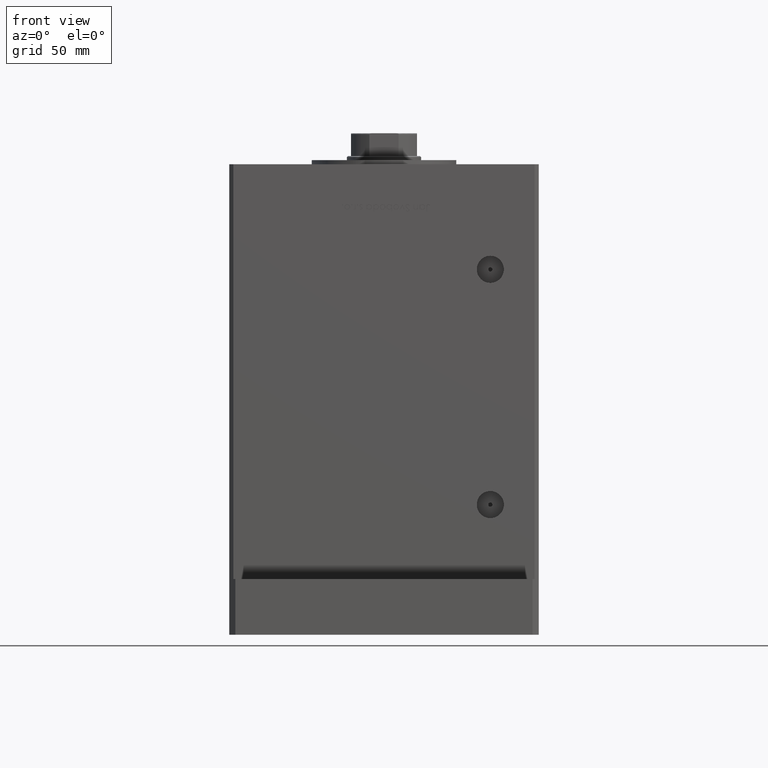
[diagram: clean part render]
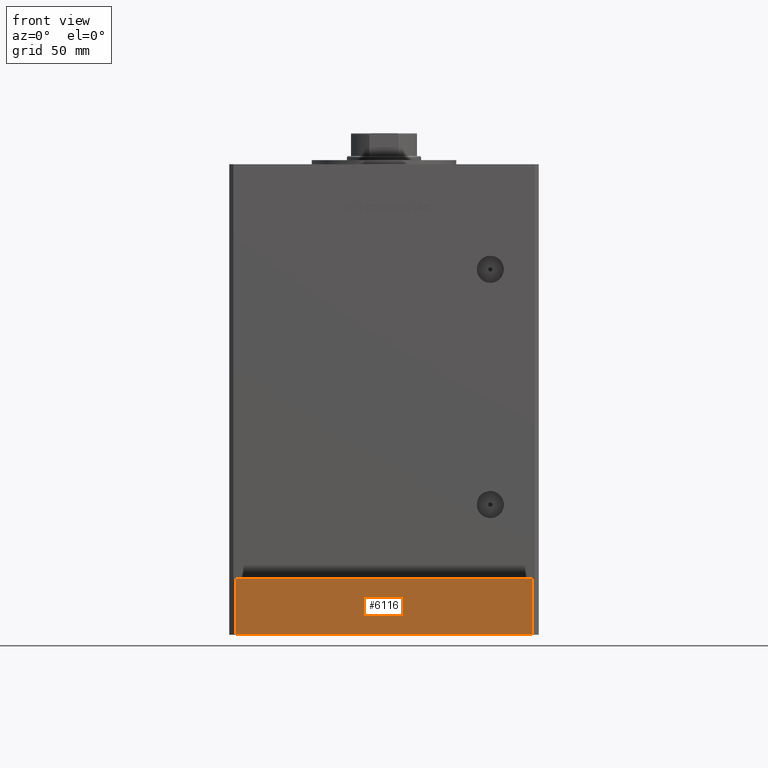
[diagram: same view with one face highlighted and labeled with its STEP entity id]
A machine part, front view. The second image highlights one B-rep face of the part: STEP entity #6116.
In plain terms, the highlighted planar face has unit normal (-0, 1, 0).
Its self-contained STEP definition (entity closure, byte-faithful):
#1515 = DIRECTION ( 'NONE',  ( 1.000000000000000000, 7.709882115452476194E-16, 0.000000000000000000 ) ) ;
#4117 = EDGE_CURVE ( 'NONE', #48391, #29705, #46267, .T. ) ;
#5041 = DIRECTION ( 'NONE',  ( -0.000000000000000000, -0.000000000000000000, -1.000000000000000000 ) ) ;
#6116 = ADVANCED_FACE ( 'NONE', ( #36445 ), #36174, .F. ) ;
#6360 = CARTESIAN_POINT ( 'NONE',  ( 72.00000000000001421, -104.9999999999999005, 0.000000000000000000 ) ) ;
#6462 = EDGE_CURVE ( 'NONE', #39357, #22226, #15786, .T. ) ;
#7442 = CARTESIAN_POINT ( 'NONE',  ( -71.99999999999998579, -105.0000000000000142, 27.00000000000000000 ) ) ;
#9493 = VECTOR ( 'NONE', #28235, 1000.000000000000000 ) ;
#11187 = CARTESIAN_POINT ( 'NONE',  ( -71.99999999999998579, -105.0000000000000142, 27.00000000000000000 ) ) ;
#11608 = CARTESIAN_POINT ( 'NONE',  ( -71.99999999999998579, -105.0000000000000142, 0.000000000000000000 ) ) ;
#14618 = AXIS2_PLACEMENT_3D ( 'NONE', #7442, #23164, #28299 ) ;
#15496 = VECTOR ( 'NONE', #1515, 1000.000000000000000 ) ;
#15786 = LINE ( 'NONE', #11187, #9493 ) ;
#16791 = CARTESIAN_POINT ( 'NONE',  ( 72.00000000000001421, -104.9999999999999005, 27.00000000000000000 ) ) ;
#18610 = ORIENTED_EDGE ( 'NONE', *, *, #4117, .F. ) ;
#22226 = VERTEX_POINT ( 'NONE', #11608 ) ;
#23164 = DIRECTION ( 'NONE',  ( -7.709882115452476194E-16, 1.000000000000000000, 0.000000000000000000 ) ) ;
#24363 = ORIENTED_EDGE ( 'NONE', *, *, #47013, .F. ) ;
#28235 = DIRECTION ( 'NONE',  ( -0.000000000000000000, -0.000000000000000000, -1.000000000000000000 ) ) ;
#28299 = DIRECTION ( 'NONE',  ( -1.000000000000000000, -7.709882115452476194E-16, 0.000000000000000000 ) ) ;
#29705 = VERTEX_POINT ( 'NONE', #6360 ) ;
#32501 = EDGE_CURVE ( 'NONE', #22226, #29705, #34585, .T. ) ;
#32891 = ORIENTED_EDGE ( 'NONE', *, *, #32501, .T. ) ;
#34585 = LINE ( 'NONE', #37867, #15496 ) ;
#35472 = VECTOR ( 'NONE', #5041, 1000.000000000000000 ) ;
#36174 = PLANE ( 'NONE',  #14618 ) ;
#36445 = FACE_OUTER_BOUND ( 'NONE', #45139, .T. ) ;
#37867 = CARTESIAN_POINT ( 'NONE',  ( -71.99999999999998579, -105.0000000000000142, 0.000000000000000000 ) ) ;
#39183 = VECTOR ( 'NONE', #39477, 1000.000000000000000 ) ;
#39357 = VERTEX_POINT ( 'NONE', #40624 ) ;
#39477 = DIRECTION ( 'NONE',  ( 1.000000000000000000, 7.709882115452476194E-16, 0.000000000000000000 ) ) ;
#40624 = CARTESIAN_POINT ( 'NONE',  ( -71.99999999999998579, -105.0000000000000142, 27.00000000000000000 ) ) ;
#42196 = CARTESIAN_POINT ( 'NONE',  ( 72.00000000000001421, -104.9999999999999005, 27.00000000000000000 ) ) ;
#43813 = CARTESIAN_POINT ( 'NONE',  ( -71.99999999999998579, -105.0000000000000142, 27.00000000000000000 ) ) ;
#45139 = EDGE_LOOP ( 'NONE', ( #32891, #18610, #24363, #48637 ) ) ;
#46267 = LINE ( 'NONE', #42196, #35472 ) ;
#47013 = EDGE_CURVE ( 'NONE', #39357, #48391, #47880, .T. ) ;
#47880 = LINE ( 'NONE', #43813, #39183 ) ;
#48391 = VERTEX_POINT ( 'NONE', #16791 ) ;
#48637 = ORIENTED_EDGE ( 'NONE', *, *, #6462, .T. ) ;